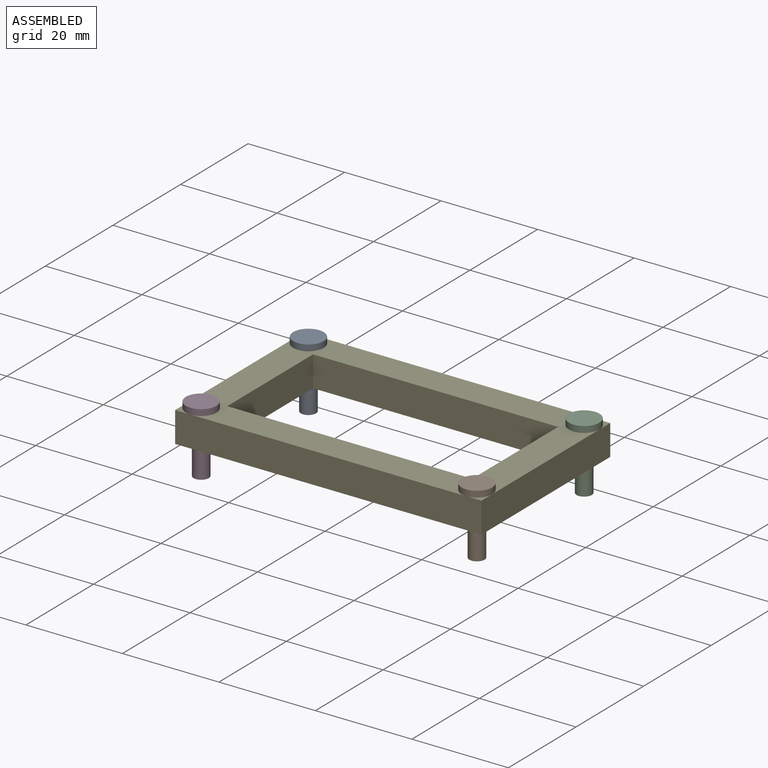
[diagram: assembled view]
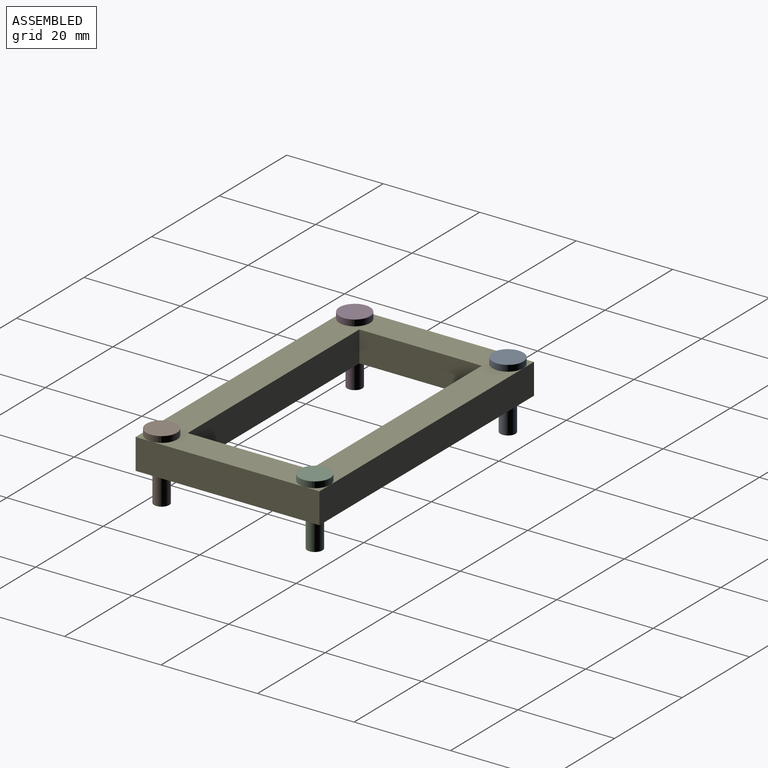
[diagram: assembled view, second angle]
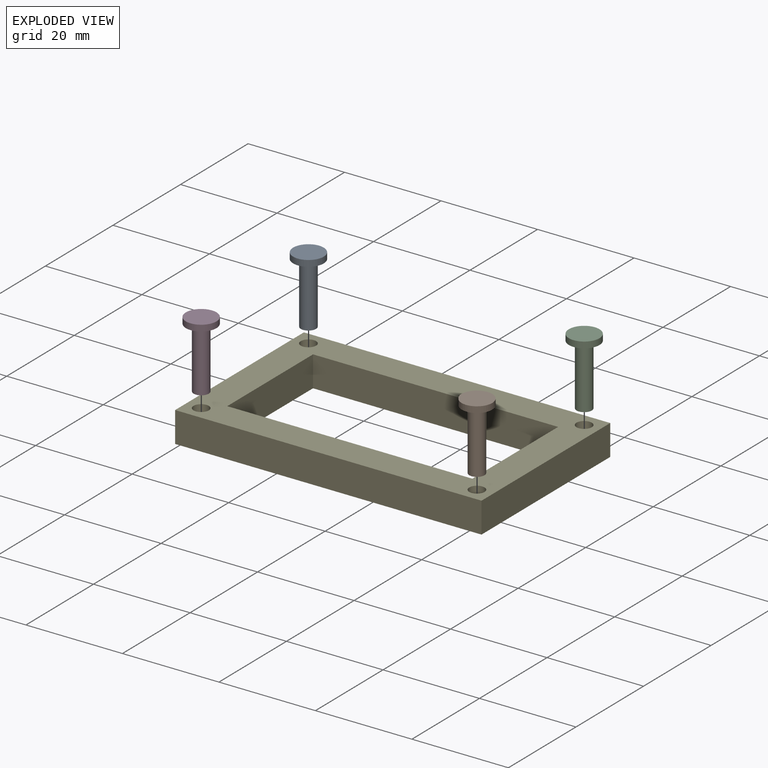
[diagram: exploded view]
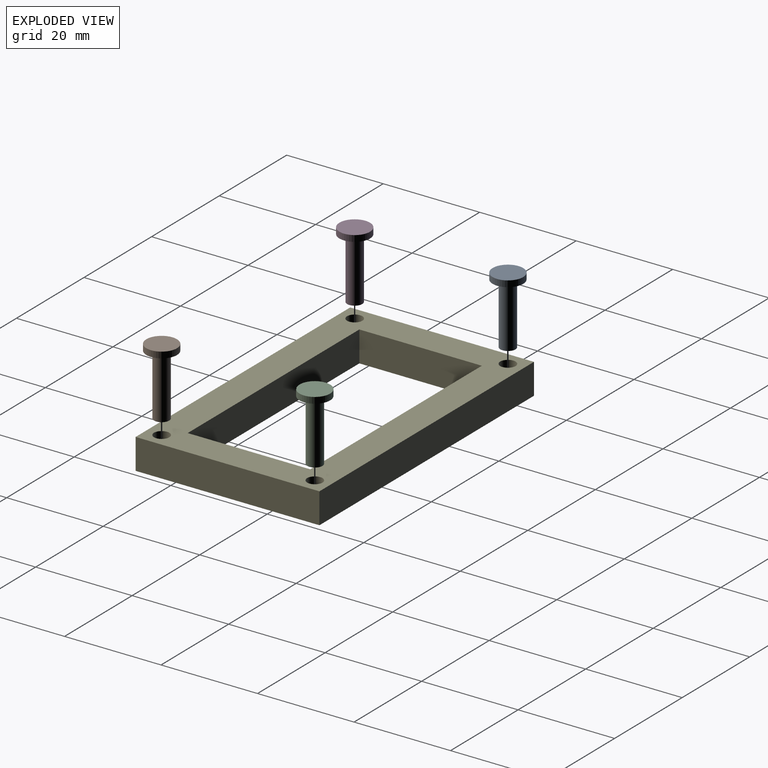
[diagram: exploded view, second angle]
ASSEMBLY  parts=5 mates=4
PART A: 5 faces, bbox 6.4x6.4x14 mm
  f0: cylinder r=1.57mm len=12.7mm, axis (0,0,1), area 125.7mm2, adj f1,f4
  f1: plane 3.15x3.15mm, normal (0,0,-1), area 7.8mm2, adj f0
  f2: cylinder r=3.17mm len=6.35mm, axis (0,0,-1), area 25.3mm2, adj f3,f4
  f3: plane 6.35x6.35mm, normal (0,0,1), area 31.7mm2, adj f2
  f4: plane 6.35x6.35mm, normal (0,0,-1), area 23.9mm2, adj f0,f2
PART B: same geometry as A
PART C: same geometry as A
PART D: same geometry as A
PART E: 14 faces, bbox 63.5x38.1x6.4 mm
  f0: plane 63.5x38.1mm, normal (0,0,1), area 1097.4mm2, adj f2,f3,f4,f5,f6,f7,f8,f9
  f1: plane 63.5x38.1mm, normal (0,0,-1), area 1097.4mm2, adj f2,f3,f4,f5,f6,f7,f8,f9
  f2: plane 38.1x6.35mm, normal (-1,0,0), area 241.9mm2, adj f0,f1,f3,f9
  f3: plane 63.5x6.35mm, normal (0,-1,0), area 403.2mm2, adj f0,f1,f2,f4
  f4: plane 38.1x6.35mm, normal (1,0,0), area 241.9mm2, adj f0,f1,f3,f9
  f5: plane 25.4x6.35mm, normal (-1,0,0), area 161.3mm2, adj f0,f1,f6,f8
  f6: plane 50.8x6.35mm, normal (0,1,0), area 322.6mm2, adj f0,f1,f5,f7
  f7: plane 25.4x6.35mm, normal (1,0,0), area 161.3mm2, adj f0,f1,f6,f8
  f8: plane 50.8x6.35mm, normal (0,-1,0), area 322.6mm2, adj f0,f1,f5,f7
  f9: plane 63.5x6.35mm, normal (0,1,0), area 403.2mm2, adj f0,f1,f2,f4
  f10: cylinder r=1.59mm len=6.35mm, axis (0,0,1), area 63.3mm2, adj f0,f1
  f11: cylinder r=1.59mm len=6.35mm, axis (0,0,1), area 63.3mm2, adj f0,f1
  f12: cylinder r=1.59mm len=6.35mm, axis (0,0,1), area 63.3mm2, adj f0,f1
  f13: cylinder r=1.59mm len=6.35mm, axis (0,0,1), area 63.3mm2, adj f0,f1
PLACE A t=(-57.15,0,0)mm
PLACE B t=(0,-31.75,0)mm
PLACE C at identity
PLACE D t=(-57.15,-31.75,0)mm
PLACE E at identity
MATE fastened D.f0 <-> E.f11  axis (0,0,-1) through (-28.58,-15.87,6.35)mm
MATE fastened B.f0 <-> E.f12  axis (0,0,-1) through (28.58,-15.88,6.35)mm
MATE fastened A.f0 <-> E.f13  axis (0,0,-1) through (-28.58,15.87,6.35)mm
MATE fastened C.f0 <-> E.f10  axis (0,0,-1) through (28.58,15.87,6.35)mm
